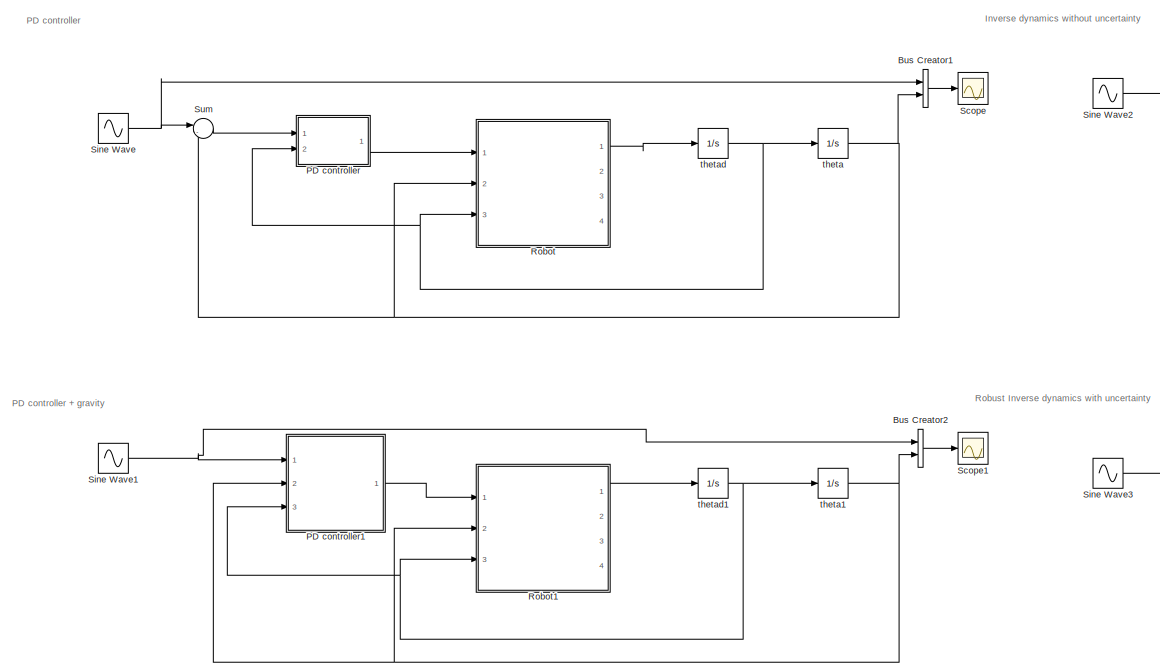
[diagram: root canvas - part 1/2, left side, full height]
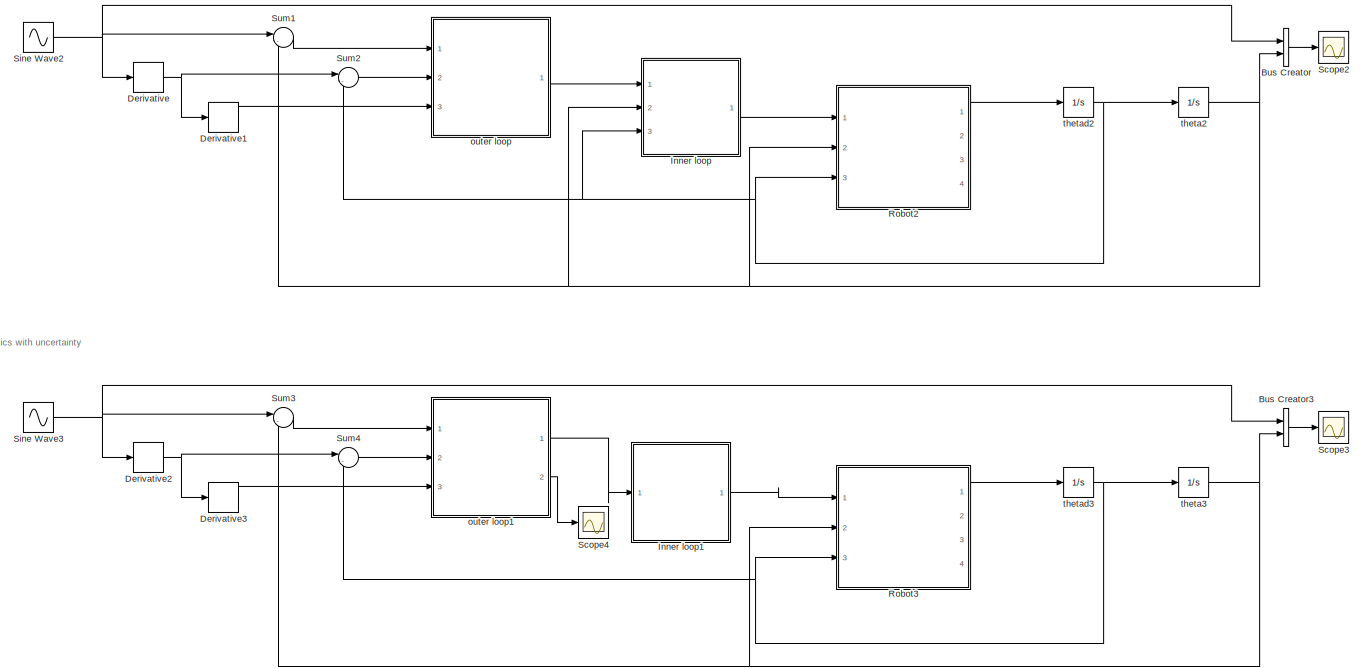
[diagram: root canvas - part 2/2, right side, full height]
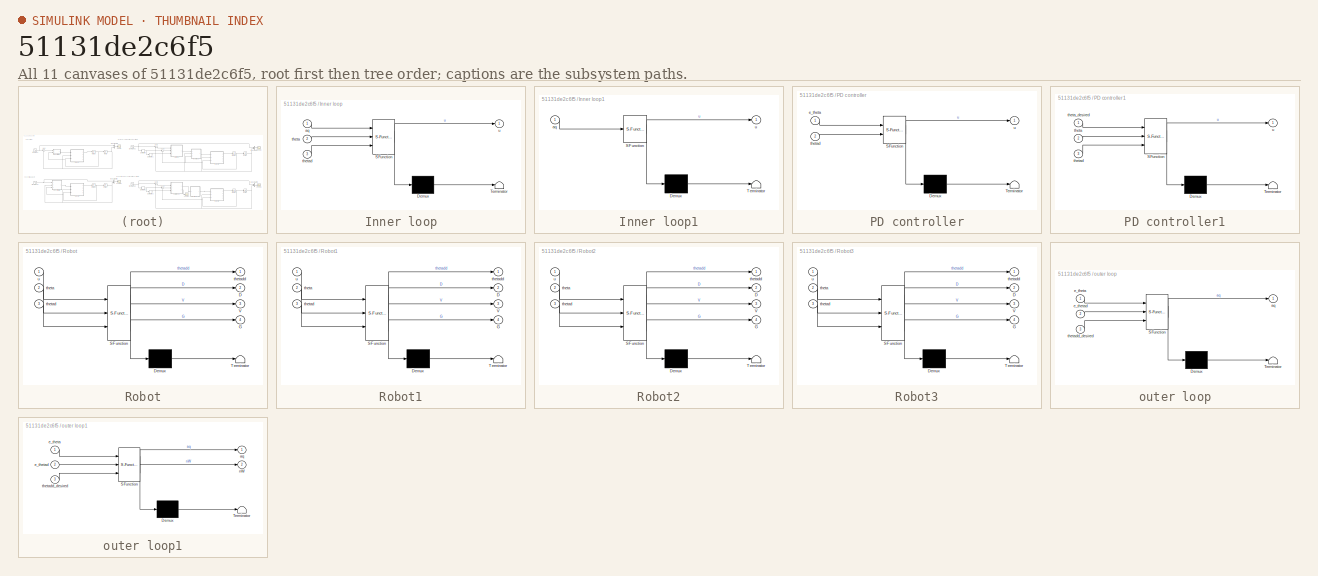
[diagram: thumbnail index - all 11 canvases of the model, root first then tree order]
MODEL slx_51131de2c6f5
KIND model
CONFIG AbsTol = auto
CONFIG EnableMultiTasking = off
CONFIG FixedStep = auto
CONFIG MaxStep = auto
CONFIG MinStep = auto
CONFIG RelTol = 1e-3
CONFIG SampleTimeConstraint = Unconstrained
CONFIG Solver = ode113
CONFIG SolverName = ode113
CONFIG StartTime = 0.0
CONFIG StopTime = 40
BLOCK [BusCreator] Bus Creator
  DisplayOption = bar
  InheritFromInputs = on
  Inputs = 2
  Ports = [2, 1]
BLOCK [BusCreator] Bus Creator1
  DisplayOption = bar
  InheritFromInputs = on
  Inputs = 2
  Ports = [2, 1]
BLOCK [BusCreator] Bus Creator2
  DisplayOption = bar
  InheritFromInputs = on
  Inputs = 2
  Ports = [2, 1]
BLOCK [BusCreator] Bus Creator3
  DisplayOption = bar
  InheritFromInputs = on
  Inputs = 2
  Ports = [2, 1]
BLOCK [Derivative] Derivative
BLOCK [Derivative] Derivative1
BLOCK [Derivative] Derivative2
BLOCK [Derivative] Derivative3
BLOCK [SubSystem] Inner loop
  ErrorFcn = Stateflow.Translate.translate
  PermitHierarchicalResolution = ExplicitOnly
  Ports = [3, 1]
  RequestExecContextInheritance = off
  SFBlockType = MATLAB Function
  TreatAsAtomicUnit = on
  Variant = off
BLOCK [Demux] Inner loop/ Demux 
  Outputs = 1
  Ports = [1, 1]
BLOCK [S-Function] Inner loop/ SFunction 
  EnableBusSupport = on
  FunctionName = sf_sfun
  PortCounts = [3 2]
  Ports = [3, 2]
  SFcnIsStateOwnerBlock = off
  SFunctionDeploymentMode = off
  Tag = Stateflow S-Function IRB140 5
BLOCK [Terminator] Inner loop/ Terminator 
BLOCK [Inport] Inner loop/aq
  IconDisplay = Port number
BLOCK [Inport] Inner loop/theta
  IconDisplay = Port number
  Port = 2
BLOCK [Inport] Inner loop/thetad
  IconDisplay = Port number
  Port = 3
BLOCK [Outport] Inner loop/u
  IconDisplay = Port number
BLOCK [SubSystem] Inner loop1
  ErrorFcn = Stateflow.Translate.translate
  PermitHierarchicalResolution = ExplicitOnly
  Ports = [1, 1]
  RequestExecContextInheritance = off
  SFBlockType = MATLAB Function
  TreatAsAtomicUnit = on
  Variant = off
BLOCK [Demux] Inner loop1/ Demux 
  Outputs = 1
  Ports = [1, 1]
BLOCK [S-Function] Inner loop1/ SFunction 
  EnableBusSupport = on
  FunctionName = sf_sfun
  PortCounts = [1 2]
  Ports = [1, 2]
  SFcnIsStateOwnerBlock = off
  SFunctionDeploymentMode = off
  Tag = Stateflow S-Function IRB140 8
BLOCK [Terminator] Inner loop1/ Terminator 
BLOCK [Inport] Inner loop1/aq
  IconDisplay = Port number
BLOCK [Outport] Inner loop1/u
  IconDisplay = Port number
BLOCK [SubSystem] PD controller
  ErrorFcn = Stateflow.Translate.translate
  PermitHierarchicalResolution = ExplicitOnly
  Ports = [2, 1]
  RequestExecContextInheritance = off
  SFBlockType = MATLAB Function
  TreatAsAtomicUnit = on
  Variant = off
BLOCK [Demux] PD controller/ Demux 
  Outputs = 1
  Ports = [1, 1]
BLOCK [S-Function] PD controller/ SFunction 
  EnableBusSupport = on
  FunctionName = sf_sfun
  PortCounts = [2 2]
  Ports = [2, 2]
  SFcnIsStateOwnerBlock = off
  SFunctionDeploymentMode = off
  Tag = Stateflow S-Function IRB140 1
BLOCK [Terminator] PD controller/ Terminator 
BLOCK [Inport] PD controller/e_theta
  IconDisplay = Port number
BLOCK [Inport] PD controller/thetad
  IconDisplay = Port number
  Port = 2
BLOCK [Outport] PD controller/u
  IconDisplay = Port number
BLOCK [SubSystem] PD controller1
  ErrorFcn = Stateflow.Translate.translate
  PermitHierarchicalResolution = ExplicitOnly
  Ports = [3, 1]
  RequestExecContextInheritance = off
  SFBlockType = MATLAB Function
  TreatAsAtomicUnit = on
  Variant = off
BLOCK [Demux] PD controller1/ Demux 
  Outputs = 1
  Ports = [1, 1]
BLOCK [S-Function] PD controller1/ SFunction 
  EnableBusSupport = on
  FunctionName = sf_sfun
  PortCounts = [3 2]
  Ports = [3, 2]
  SFcnIsStateOwnerBlock = off
  SFunctionDeploymentMode = off
  Tag = Stateflow S-Function IRB140 3
BLOCK [Terminator] PD controller1/ Terminator 
BLOCK [Inport] PD controller1/theta
  IconDisplay = Port number
  Port = 2
BLOCK [Inport] PD controller1/theta_desired
  IconDisplay = Port number
BLOCK [Inport] PD controller1/thetad
  IconDisplay = Port number
  Port = 3
BLOCK [Outport] PD controller1/u
  IconDisplay = Port number
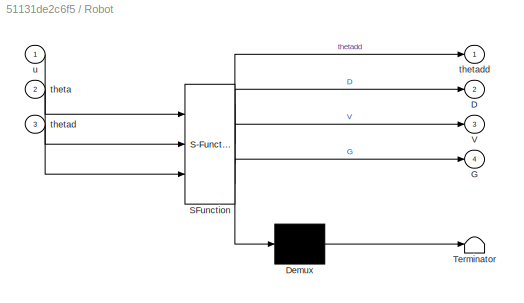
BLOCK [SubSystem] Robot
  ErrorFcn = Stateflow.Translate.translate
  PermitHierarchicalResolution = ExplicitOnly
  Ports = [3, 4]
  RequestExecContextInheritance = off
  SFBlockType = MATLAB Function
  TreatAsAtomicUnit = on
  Variant = off
BLOCK [Demux] Robot/ Demux 
  Outputs = 1
  Ports = [1, 1]
BLOCK [S-Function] Robot/ SFunction 
  EnableBusSupport = on
  FunctionName = sf_sfun
  PortCounts = [3 5]
  Ports = [3, 5]
  SFcnIsStateOwnerBlock = off
  SFunctionDeploymentMode = off
  Tag = Stateflow S-Function IRB140 2
BLOCK [Terminator] Robot/ Terminator 
BLOCK [Outport] Robot/D
  IconDisplay = Port number
  Port = 2
BLOCK [Outport] Robot/G
  IconDisplay = Port number
  Port = 4
BLOCK [Outport] Robot/V
  IconDisplay = Port number
  Port = 3
BLOCK [Inport] Robot/theta
  IconDisplay = Port number
  Port = 2
BLOCK [Inport] Robot/thetad
  IconDisplay = Port number
  Port = 3
BLOCK [Outport] Robot/thetadd
  IconDisplay = Port number
BLOCK [Inport] Robot/u
  IconDisplay = Port number
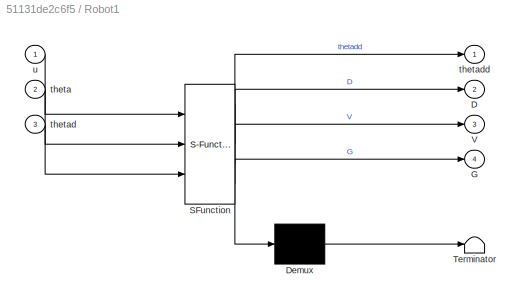
BLOCK [SubSystem] Robot1
  ErrorFcn = Stateflow.Translate.translate
  PermitHierarchicalResolution = ExplicitOnly
  Ports = [3, 4]
  RequestExecContextInheritance = off
  SFBlockType = MATLAB Function
  TreatAsAtomicUnit = on
  Variant = off
BLOCK [Demux] Robot1/ Demux 
  Outputs = 1
  Ports = [1, 1]
BLOCK [S-Function] Robot1/ SFunction 
  EnableBusSupport = on
  FunctionName = sf_sfun
  PortCounts = [3 5]
  Ports = [3, 5]
  SFcnIsStateOwnerBlock = off
  SFunctionDeploymentMode = off
  Tag = Stateflow S-Function IRB140 4
BLOCK [Terminator] Robot1/ Terminator 
BLOCK [Outport] Robot1/D
  IconDisplay = Port number
  Port = 2
BLOCK [Outport] Robot1/G
  IconDisplay = Port number
  Port = 4
BLOCK [Outport] Robot1/V
  IconDisplay = Port number
  Port = 3
BLOCK [Inport] Robot1/theta
  IconDisplay = Port number
  Port = 2
BLOCK [Inport] Robot1/thetad
  IconDisplay = Port number
  Port = 3
BLOCK [Outport] Robot1/thetadd
  IconDisplay = Port number
BLOCK [Inport] Robot1/u
  IconDisplay = Port number
BLOCK [SubSystem] Robot2
  ErrorFcn = Stateflow.Translate.translate
  PermitHierarchicalResolution = ExplicitOnly
  Ports = [3, 4]
  RequestExecContextInheritance = off
  SFBlockType = MATLAB Function
  TreatAsAtomicUnit = on
  Variant = off
BLOCK [Demux] Robot2/ Demux 
  Outputs = 1
  Ports = [1, 1]
BLOCK [S-Function] Robot2/ SFunction 
  EnableBusSupport = on
  FunctionName = sf_sfun
  PortCounts = [3 5]
  Ports = [3, 5]
  SFcnIsStateOwnerBlock = off
  SFunctionDeploymentMode = off
  Tag = Stateflow S-Function IRB140 6
BLOCK [Terminator] Robot2/ Terminator 
BLOCK [Outport] Robot2/D
  IconDisplay = Port number
  Port = 2
BLOCK [Outport] Robot2/G
  IconDisplay = Port number
  Port = 4
BLOCK [Outport] Robot2/V
  IconDisplay = Port number
  Port = 3
BLOCK [Inport] Robot2/theta
  IconDisplay = Port number
  Port = 2
BLOCK [Inport] Robot2/thetad
  IconDisplay = Port number
  Port = 3
BLOCK [Outport] Robot2/thetadd
  IconDisplay = Port number
BLOCK [Inport] Robot2/u
  IconDisplay = Port number
BLOCK [SubSystem] Robot3
  ErrorFcn = Stateflow.Translate.translate
  PermitHierarchicalResolution = ExplicitOnly
  Ports = [3, 4]
  RequestExecContextInheritance = off
  SFBlockType = MATLAB Function
  TreatAsAtomicUnit = on
  Variant = off
BLOCK [Demux] Robot3/ Demux 
  Outputs = 1
  Ports = [1, 1]
BLOCK [S-Function] Robot3/ SFunction 
  EnableBusSupport = on
  FunctionName = sf_sfun
  PortCounts = [3 5]
  Ports = [3, 5]
  SFcnIsStateOwnerBlock = off
  SFunctionDeploymentMode = off
  Tag = Stateflow S-Function IRB140 9
BLOCK [Terminator] Robot3/ Terminator 
BLOCK [Outport] Robot3/D
  IconDisplay = Port number
  Port = 2
BLOCK [Outport] Robot3/G
  IconDisplay = Port number
  Port = 4
BLOCK [Outport] Robot3/V
  IconDisplay = Port number
  Port = 3
BLOCK [Inport] Robot3/theta
  IconDisplay = Port number
  Port = 2
BLOCK [Inport] Robot3/thetad
  IconDisplay = Port number
  Port = 3
BLOCK [Outport] Robot3/thetadd
  IconDisplay = Port number
BLOCK [Inport] Robot3/u
  IconDisplay = Port number
BLOCK [Scope] Scope
  NumInputPorts = 1
  Ports = [1]
  ScopeSpecificationString = Simulink.scopes.TimeScopeBlockCfg('CurrentConfiguration', extmgr.ConfigurationSet(extmgr.Configuration('Core','General UI',true),extmgr.Configuration('Core','Source UI',true),extmgr.Configuration('Sources','WiredSimulink',true),extmgr.Configuration('Visuals','Time Domain',true,'SerializedDisplays',{struct('MinYLimReal','-1.13099','MaxYLimReal','3.13089','YLabelReal','','MinYLimMag','0.00000','MaxY...<+1365ch>
BLOCK [Scope] Scope1
  NumInputPorts = 1
  Ports = [1]
  ScopeSpecificationString = Simulink.scopes.TimeScopeBlockCfg('CurrentConfiguration', extmgr.ConfigurationSet(extmgr.Configuration('Core','General UI',true),extmgr.Configuration('Core','Source UI',true),extmgr.Configuration('Sources','WiredSimulink',true,'DataLoggingVariableName','ScopeData1'),extmgr.Configuration('Visuals','Time Domain',true,'SerializedDisplays',{struct('MinYLimReal','-1.10789','MaxYLimReal','3.12758','YLab...<+1406ch>
BLOCK [Scope] Scope2
  NumInputPorts = 1
  Ports = [1]
  ScopeSpecificationString = Simulink.scopes.TimeScopeBlockCfg('CurrentConfiguration', extmgr.ConfigurationSet(extmgr.Configuration('Core','General UI',true),extmgr.Configuration('Core','Source UI',true),extmgr.Configuration('Sources','WiredSimulink',true,'DataLoggingVariableName','ScopeData2'),extmgr.Configuration('Visuals','Time Domain',true,'SerializedDisplays',{struct('MinYLimReal','-0.25735','MaxYLimReal','2.25082','YLab...<+1406ch>
BLOCK [Scope] Scope3
  NumInputPorts = 1
  Ports = [1]
  ScopeSpecificationString = Simulink.scopes.TimeScopeBlockCfg('CurrentConfiguration', extmgr.ConfigurationSet(extmgr.Configuration('Core','General UI',true),extmgr.Configuration('Core','Source UI',true),extmgr.Configuration('Sources','WiredSimulink',true,'DataLoggingVariableName','ScopeData3'),extmgr.Configuration('Visuals','Time Domain',true,'SerializedDisplays',{struct('MinYLimReal','-0.22444','MaxYLimReal','2.01076','YLab...<+1450ch>
BLOCK [Scope] Scope4
  NumInputPorts = 1
  Ports = [1]
  ScopeSpecificationString = Simulink.scopes.TimeScopeBlockCfg('CurrentConfiguration', extmgr.ConfigurationSet(extmgr.Configuration('Core','General UI',true),extmgr.Configuration('Core','Source UI',true),extmgr.Configuration('Sources','WiredSimulink',true,'DataLoggingVariableName','ScopeData1'),extmgr.Configuration('Visuals','Time Domain',true,'SerializedDisplays',{struct('MinYLimReal','-0.51069','MaxYLimReal','4.63642','YLab...<+1444ch>
BLOCK [Sin] Sine Wave
  Amplitude = ones(6,1)
  Bias = ones(6,1)
  Ports = [0, 1]
  SampleTime = 0
BLOCK [Sin] Sine Wave1
  Amplitude = ones(6,1)
  Bias = ones(6,1)
  Ports = [0, 1]
  SampleTime = 0
BLOCK [Sin] Sine Wave2
  Amplitude = ones(6,1)
  Bias = ones(6,1)
  Frequency = 0.1
  Ports = [0, 1]
  SampleTime = 0
BLOCK [Sin] Sine Wave3
  Amplitude = ones(6,1)*0
  Bias = ones(6,1)
  Frequency = 0.1
  Ports = [0, 1]
  SampleTime = 0
BLOCK [Sum] Sum
  IconShape = round
  InputSameDT = off
  Inputs = |-+
  OutDataTypeStr = Inherit: Inherit via internal rule
  Ports = [2, 1]
  SaturateOnIntegerOverflow = off
BLOCK [Sum] Sum1
  IconShape = round
  InputSameDT = off
  Inputs = |-+
  OutDataTypeStr = Inherit: Inherit via internal rule
  Ports = [2, 1]
  SaturateOnIntegerOverflow = off
BLOCK [Sum] Sum2
  IconShape = round
  InputSameDT = off
  Inputs = |-+
  OutDataTypeStr = Inherit: Inherit via internal rule
  Ports = [2, 1]
  SaturateOnIntegerOverflow = off
BLOCK [Sum] Sum3
  IconShape = round
  InputSameDT = off
  Inputs = |-+
  OutDataTypeStr = Inherit: Inherit via internal rule
  Ports = [2, 1]
  SaturateOnIntegerOverflow = off
BLOCK [Sum] Sum4
  IconShape = round
  InputSameDT = off
  Inputs = |-+
  OutDataTypeStr = Inherit: Inherit via internal rule
  Ports = [2, 1]
  SaturateOnIntegerOverflow = off
BLOCK [SubSystem] outer loop
  ErrorFcn = Stateflow.Translate.translate
  PermitHierarchicalResolution = ExplicitOnly
  Ports = [3, 1]
  RequestExecContextInheritance = off
  SFBlockType = MATLAB Function
  TreatAsAtomicUnit = on
  Variant = off
BLOCK [Demux] outer loop/ Demux 
  Outputs = 1
  Ports = [1, 1]
BLOCK [S-Function] outer loop/ SFunction 
  EnableBusSupport = on
  FunctionName = sf_sfun
  PortCounts = [3 2]
  Ports = [3, 2]
  SFcnIsStateOwnerBlock = off
  SFunctionDeploymentMode = off
  Tag = Stateflow S-Function IRB140 7
BLOCK [Terminator] outer loop/ Terminator 
BLOCK [Outport] outer loop/aq
  IconDisplay = Port number
BLOCK [Inport] outer loop/e_theta
  IconDisplay = Port number
BLOCK [Inport] outer loop/e_thetad
  IconDisplay = Port number
  Port = 2
BLOCK [Inport] outer loop/thetadd_desired
  IconDisplay = Port number
  Port = 3
BLOCK [SubSystem] outer loop1
  ErrorFcn = Stateflow.Translate.translate
  PermitHierarchicalResolution = ExplicitOnly
  Ports = [3, 2]
  RequestExecContextInheritance = off
  SFBlockType = MATLAB Function
  TreatAsAtomicUnit = on
  Variant = off
BLOCK [Demux] outer loop1/ Demux 
  Outputs = 1
  Ports = [1, 1]
BLOCK [S-Function] outer loop1/ SFunction 
  EnableBusSupport = on
  FunctionName = sf_sfun
  PortCounts = [3 3]
  Ports = [3, 3]
  SFcnIsStateOwnerBlock = off
  SFunctionDeploymentMode = off
  Tag = Stateflow S-Function IRB140 10
BLOCK [Terminator] outer loop1/ Terminator 
BLOCK [Outport] outer loop1/aq
  IconDisplay = Port number
BLOCK [Inport] outer loop1/e_theta
  IconDisplay = Port number
BLOCK [Inport] outer loop1/e_thetad
  IconDisplay = Port number
  Port = 2
BLOCK [Outport] outer loop1/nW
  IconDisplay = Port number
  Port = 2
BLOCK [Inport] outer loop1/thetadd_desired
  IconDisplay = Port number
  Port = 3
BLOCK [Integrator] theta
  InitialCondition = zeros(6,1)
  Ports = [1, 1]
BLOCK [Integrator] theta1
  InitialCondition = zeros(6,1)
  Ports = [1, 1]
BLOCK [Integrator] theta2
  InitialCondition = zeros(6,1)
  Ports = [1, 1]
BLOCK [Integrator] theta3
  InitialCondition = zeros(6,1)
  Ports = [1, 1]
BLOCK [Integrator] thetad
  InitialCondition = zeros(6,1)
  Ports = [1, 1]
BLOCK [Integrator] thetad1
  InitialCondition = zeros(6,1)
  Ports = [1, 1]
BLOCK [Integrator] thetad2
  InitialCondition = zeros(6,1)
  Ports = [1, 1]
BLOCK [Integrator] thetad3
  InitialCondition = zeros(6,1)
  Ports = [1, 1]
ANNOTATION (root): Inverse dynamics without uncertainty
ANNOTATION (root): PD controller
ANNOTATION (root): PD controller + gravity
ANNOTATION (root): Robust Inverse dynamics with uncertainty
LINE Bus Creator1:1 -> Scope:1
LINE Bus Creator2:1 -> Scope1:1
LINE Bus Creator3:1 -> Scope3:1
LINE Bus Creator:1 -> Scope2:1
LINE Derivative1:1 -> outer loop:3
NET Derivative2:1 -> Derivative3:1, Sum4:1
LINE Derivative3:1 -> outer loop1:3
NET Derivative:1 -> Derivative1:1, Sum2:1
LINE Inner loop1:1 -> Robot3:1
LINE Inner loop:1 -> Robot2:1
LINE PD controller1:1 -> Robot1:1
LINE PD controller:1 -> Robot:1
LINE Robot1:1 -> thetad1:1
LINE Robot2:1 -> thetad2:1
LINE Robot3:1 -> thetad3:1
LINE Robot:1 -> thetad:1
NET Sine Wave1:1 -> Bus Creator2:1, PD controller1:1
NET Sine Wave2:1 -> Bus Creator:1, Derivative:1, Sum1:1
NET Sine Wave3:1 -> Bus Creator3:1, Derivative2:1, Sum3:1
NET Sine Wave:1 -> Bus Creator1:1, Sum:1
LINE Sum1:1 -> outer loop:1
LINE Sum2:1 -> outer loop:2
LINE Sum3:1 -> outer loop1:1
LINE Sum4:1 -> outer loop1:2
LINE Sum:1 -> PD controller:1
LINE outer loop1:1 -> Inner loop1:1
LINE outer loop1:2 -> Scope4:1
LINE outer loop:1 -> Inner loop:1
NET theta1:1 -> Bus Creator2:2, PD controller1:2, Robot1:2
NET theta2:1 -> Bus Creator:2, Inner loop:2, Robot2:2, Sum1:2
NET theta3:1 -> Bus Creator3:2, Robot3:2, Sum3:2
NET theta:1 -> Bus Creator1:2, Robot:2, Sum:2
NET thetad1:1 -> PD controller1:3, Robot1:3, theta1:1
NET thetad2:1 -> Inner loop:3, Robot2:3, Sum2:2, theta2:1
NET thetad3:1 -> Robot3:3, Sum4:2, theta3:1
NET thetad:1 -> PD controller:2, Robot:3, theta:1
note: NET lines group one-source signal fan-out (src -> all destinations, sorted); 1:1 wires keep LINE
CHART PD controller states=1 transitions=1
  STATE_LABEL 'eML_blk_kernel()'
  STATE_LABEL 'SCRIPT:\nfunction u = fcn(e_theta, thetad)\nKp = diag([0.5 10 1 1 1 1])*100;\nKd = eye(6) * 10;\nu = -Kp*e_theta - Kd*thetad;\n'
CHART Robot states=1 transitions=1
  STATE_LABEL 'eML_blk_kernel()'
  STATE_LABEL 'SCRIPT:\nfunction [thetadd, D, V, G] = fcn(u, theta, thetad)\ntheta1 = theta(1);\ntheta2 = theta(2);\ntheta3 = theta(3);\ntheta4 = theta(4);\ntheta5 = theta(5);\ntheta6 = theta(6);\n\nqd1 = thetad(1);\nqd2 = thetad(2);\nqd3 = thetad(3);\nqd4 = thetad(4);\nqd5 = thetad(5);\nqd6 = thetad(6);\n\ng = 9.81;\n\nG1 = 0;\nG2 = (g*(57*sin(theta2)*cos(theta3)*cos(theta4)*sin(theta5) + 57*sin(theta3)*cos(theta2)*cos(theta4)*si...<+3608ch>'  <repeated x4 — deduplicated; at blocks: Robot, Robot1, Robot2, Robot3>
CHART PD controller1 states=1 transitions=1
  STATE_LABEL 'eML_blk_kernel()'
  STATE_LABEL 'SCRIPT:\nfunction u = fcn(theta_desired, theta, thetad)\ne_theta = theta - theta_desired;\n\ntheta1 = theta(1);\ntheta2 = theta(2);\ntheta3 = theta(3);\ntheta4 = theta(4);\ntheta5 = theta(5);\ntheta6 = theta(6);\n\ng = 9.81;\n\nG1 = 0;\nG2 = (g*(57*sin(theta2)*cos(theta3)*cos(theta4)*sin(theta5) + 57*sin(theta3)*cos(theta2)*cos(theta4)*sin(theta5) ...\n    + 57*sin(theta2)*sin(theta3)*cos(theta5) + 3186*sin(thet...<+902ch>'
CHART Robot1 states=1 transitions=1
  STATE_LABEL 'eML_blk_kernel()'
CHART Inner loop states=1 transitions=1
  STATE_LABEL 'eML_blk_kernel()'
  STATE_LABEL 'SCRIPT:\nfunction u = fcn(aq, theta, thetad)\ntheta1 = theta(1);\ntheta2 = theta(2);\ntheta3 = theta(3);\ntheta4 = theta(4);\ntheta5 = theta(5);\ntheta6 = theta(6);\n\nqd1 = thetad(1);\nqd2 = thetad(2);\nqd3 = thetad(3);\nqd4 = thetad(4);\nqd5 = thetad(5);\nqd6 = thetad(6);\n\ng = 9.81;\n\nG1 = 0;\nG2 = (g*(57*sin(theta2)*cos(theta3)*cos(theta4)*sin(theta5) + 57*sin(theta3)*cos(theta2)*cos(theta4)*sin(theta5) ...\n  ...<+3608ch>'
CHART Robot2 states=1 transitions=1
  STATE_LABEL 'eML_blk_kernel()'
CHART outer loop states=1 transitions=1
  STATE_LABEL 'eML_blk_kernel()'
  STATE_LABEL 'SCRIPT:\nfunction aq = fcn(e_theta, e_thetad, thetadd_desired)\nwn = 1;\nKp = diag(ones(6,1)*wn^2);\nKd = diag(ones(6,1)*2*wn);\naq = thetadd_desired - Kd*e_thetad - Kp*e_theta;'
CHART Inner loop1 states=1 transitions=1
  STATE_LABEL 'eML_blk_kernel()'
  STATE_LABEL 'SCRIPT:\nfunction u = fcn(aq)\n\nD = eye(6);\nV = ones(6,1);\nG = ones(6,1);\n\nu = D*aq + V + G;\n'
CHART Robot3 states=1 transitions=1
  STATE_LABEL 'eML_blk_kernel()'
CHART outer loop1 states=1 transitions=1
  STATE_LABEL 'eML_blk_kernel()'
  STATE_LABEL 'SCRIPT:\nfunction [aq, nW] = fcn(e_theta, e_thetad,thetadd_desired)\ne = [e_theta; e_thetad];\nwn = 10;\nKp = diag(ones(6,1)*wn^2);\nKd = diag(ones(6,1)*2*wn);\nRo = 10*(norm(e) + norm(e)^2 + 1);\n\nA = [zeros(6) eye(6); -Kp -Kd];\nB = [zeros(6); eye(6)];\n\n% Q = eye(12);\n% P = lyap(A,Q);\nP = [1.5000 0 0 0 0 0 -0.5000 0 0 0 0 0; 0 1.5000 0 0 0 0 0 -0.5000 0 0 0 0; 0 0 1.5000 0 0 0 0 0 -0.5000 0 0 0; ...\n   ...<+580ch>'
